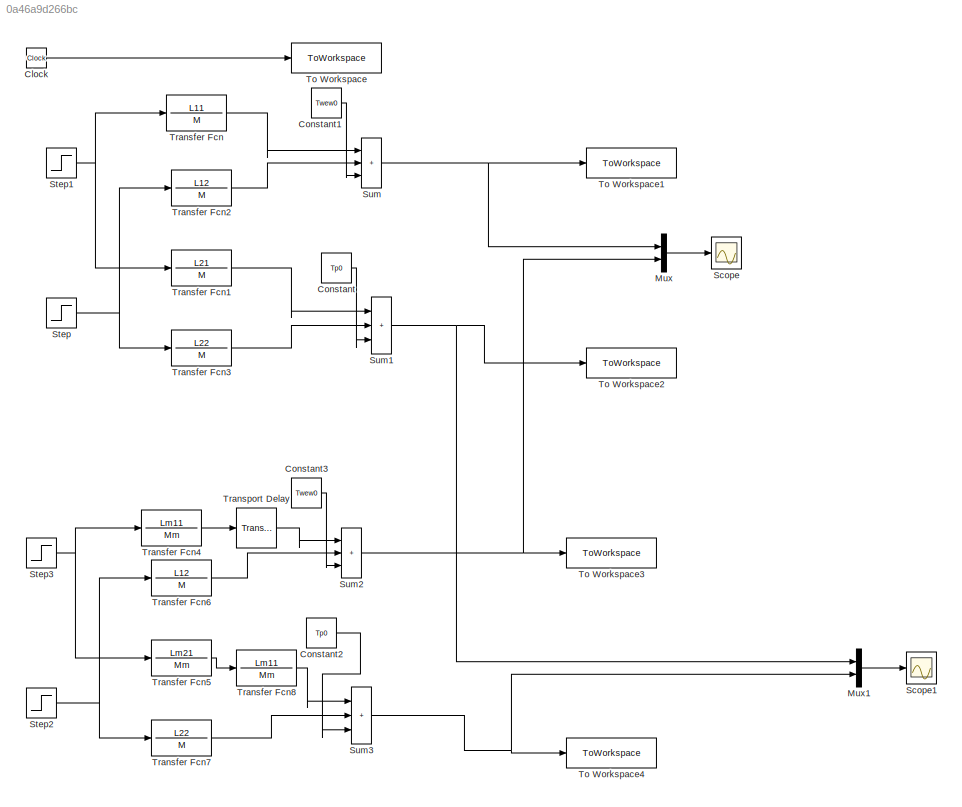
MODEL slx_0a46a9d266bc
KIND model
CONFIG AbsTol = auto
CONFIG EnableMultiTasking = off
CONFIG FixedStep = auto
CONFIG MaxStep = auto
CONFIG MinStep = auto
CONFIG RelTol = 1e-3
CONFIG SampleTimeConstraint = Unconstrained
CONFIG SolverName = VariableStepAuto
CONFIG StartTime = 0.0
CONFIG StopTime = t_simulation
BLOCK [Clock] Clock
BLOCK [Constant] Constant
  Value = Tp0
BLOCK [Constant] Constant1
  Value = Twew0
BLOCK [Constant] Constant2
  Value = Tp0
BLOCK [Constant] Constant3
  Value = Twew0
BLOCK [Mux] Mux
  DisplayOption = bar
  Inputs = 2
BLOCK [Mux] Mux1
  DisplayOption = bar
  Inputs = 2
BLOCK [Scope] Scope
  Floating = off
  NumInputPorts = 1
  ScopeSpecificationString = Simulink.scopes.TimeScopeBlockCfg('CurrentConfiguration', extmgr.ConfigurationSet(extmgr.Configuration('Core','General UI',true),extmgr.Configuration('Core','Source UI',true),extmgr.Configuration('Sources','WiredSimulink',true),extmgr.Configuration('Visuals','Time Domain',true,'SerializedDisplays',{struct('MinYLimReal','19.37504','MaxYLimReal','25.62466','YLabelReal','','MinYLimMag','19.37504','Ma...<+1363ch>
BLOCK [Scope] Scope1
  Floating = off
  NumInputPorts = 1
  ScopeSpecificationString = Simulink.scopes.TimeScopeBlockCfg('CurrentConfiguration', extmgr.ConfigurationSet(extmgr.Configuration('Core','General UI',true),extmgr.Configuration('Core','Source UI',true),extmgr.Configuration('Sources','WiredSimulink',true,'DataLoggingVariableName','ScopeData1'),extmgr.Configuration('Visuals','Time Domain',true,'SerializedDisplays',{struct('MinYLimReal','12.00059','MaxYLimReal','16.99467','YLa...<+1376ch>
BLOCK [Step] Step
  After = dTzew
  SampleTime = 0
  Time = t0
BLOCK [Step] Step1
  After = dgq
  SampleTime = 0
  Time = t0
BLOCK [Step] Step2
  After = dTzew
  SampleTime = 0
  Time = t0
BLOCK [Step] Step3
  After = dgq
  SampleTime = 0
  Time = t0
BLOCK [Sum] Sum
  IconShape = rectangular
  Inputs = |+++
BLOCK [Sum] Sum1
  IconShape = rectangular
  Inputs = |+++
BLOCK [Sum] Sum2
  IconShape = rectangular
  Inputs = |+++
BLOCK [Sum] Sum3
  IconShape = rectangular
  Inputs = |+++
BLOCK [ToWorkspace] To Workspace
  FixptAsFi = on
  MaxDataPoints = inf
  SampleTime = -1
  VariableName = t
BLOCK [ToWorkspace] To Workspace1
  FixptAsFi = on
  MaxDataPoints = inf
  SampleTime = -1
  VariableName = Twew
BLOCK [ToWorkspace] To Workspace2
  FixptAsFi = on
  MaxDataPoints = inf
  SampleTime = -1
  VariableName = Tp
BLOCK [ToWorkspace] To Workspace3
  FixptAsFi = on
  MaxDataPoints = inf
  SampleTime = -1
  VariableName = Twew1
BLOCK [ToWorkspace] To Workspace4
  FixptAsFi = on
  MaxDataPoints = inf
  SampleTime = -1
  VariableName = Tp1
BLOCK [TransferFcn] Transfer Fcn
  Denominator = M
  Numerator = L11
BLOCK [TransferFcn] Transfer Fcn1
  Denominator = M
  Numerator = L21
BLOCK [TransferFcn] Transfer Fcn2
  Denominator = M
  Numerator = L12
BLOCK [TransferFcn] Transfer Fcn3
  Denominator = M
  Numerator = L22
BLOCK [TransferFcn] Transfer Fcn4
  Denominator = Mm
  Numerator = Lm11
BLOCK [TransferFcn] Transfer Fcn5
  Denominator = Mm
  Numerator = Lm21
BLOCK [TransferFcn] Transfer Fcn6
  Denominator = M
  Numerator = L12
BLOCK [TransferFcn] Transfer Fcn7
  Denominator = M
  Numerator = L22
BLOCK [TransferFcn] Transfer Fcn8
  Denominator = Mm
  Numerator = Lm11
BLOCK [TransportDelay] Transport Delay
  DelayTime = 250
LINE Clock:1 -> To Workspace:1
LINE Constant1:1 -> Sum:3
LINE Constant2:1 -> Sum3:3
LINE Constant3:1 -> Sum2:3
LINE Constant:1 -> Sum1:3
LINE Mux1:1 -> Scope1:1
LINE Mux:1 -> Scope:1
NET Step1:1 -> Transfer Fcn1:1, Transfer Fcn:1
NET Step2:1 -> Transfer Fcn6:1, Transfer Fcn7:1
NET Step3:1 -> Transfer Fcn4:1, Transfer Fcn5:1
NET Step:1 -> Transfer Fcn2:1, Transfer Fcn3:1
NET Sum1:1 -> Mux1:1, To Workspace2:1
NET Sum2:1 -> Mux:2, To Workspace3:1
NET Sum3:1 -> Mux1:2, To Workspace4:1
NET Sum:1 -> Mux:1, To Workspace1:1
LINE Transfer Fcn1:1 -> Sum1:1
LINE Transfer Fcn2:1 -> Sum:2
LINE Transfer Fcn3:1 -> Sum1:2
LINE Transfer Fcn4:1 -> Transport Delay:1
LINE Transfer Fcn5:1 -> Transfer Fcn8:1
LINE Transfer Fcn6:1 -> Sum2:2
LINE Transfer Fcn7:1 -> Sum3:2
LINE Transfer Fcn8:1 -> Sum3:1
LINE Transfer Fcn:1 -> Sum:1
LINE Transport Delay:1 -> Sum2:1
note: NET lines group one-source signal fan-out (src -> all destinations, sorted); 1:1 wires keep LINE
